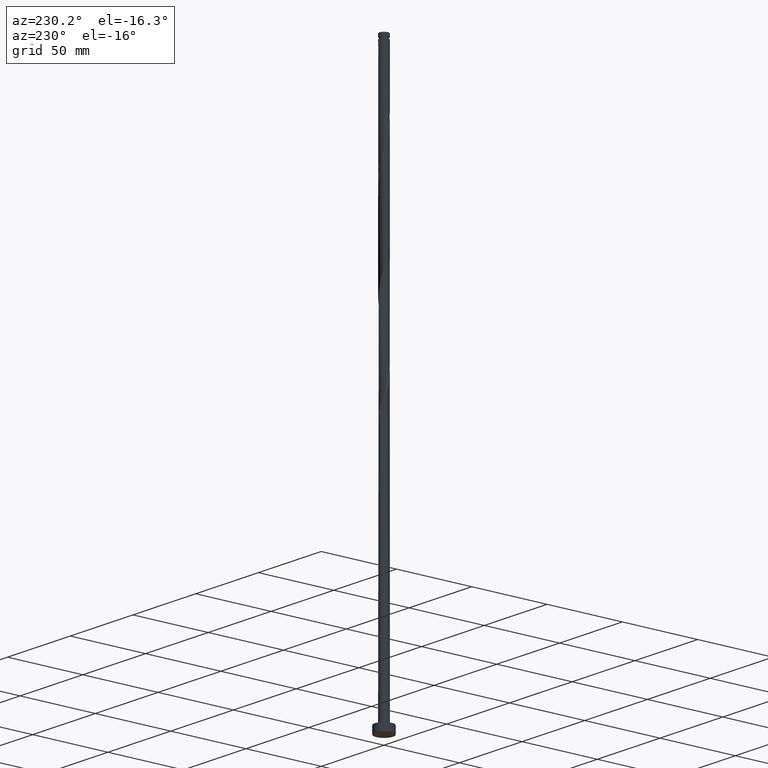
[diagram: clean part render]
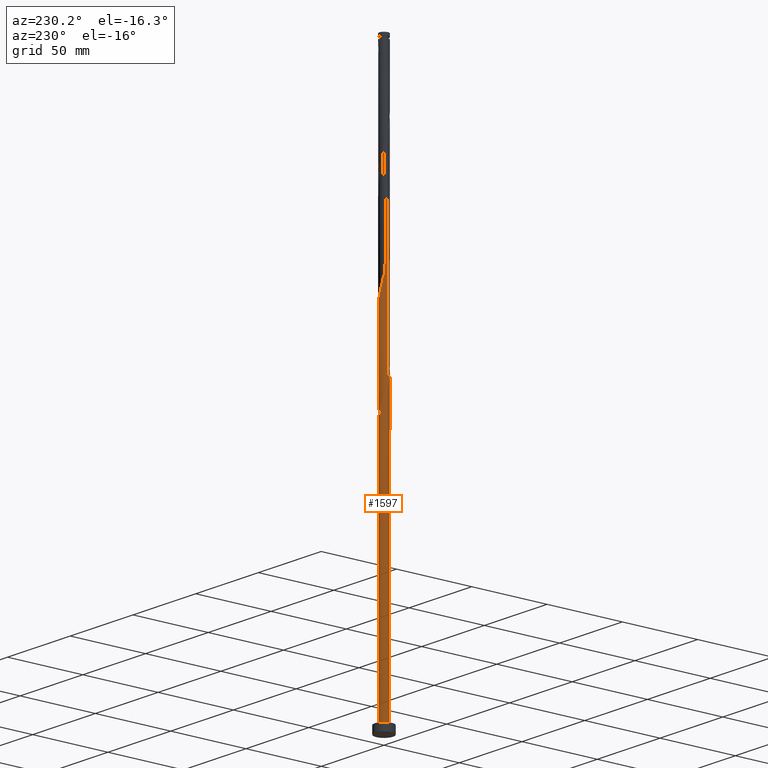
[diagram: same view with one face highlighted and labeled with its STEP entity id]
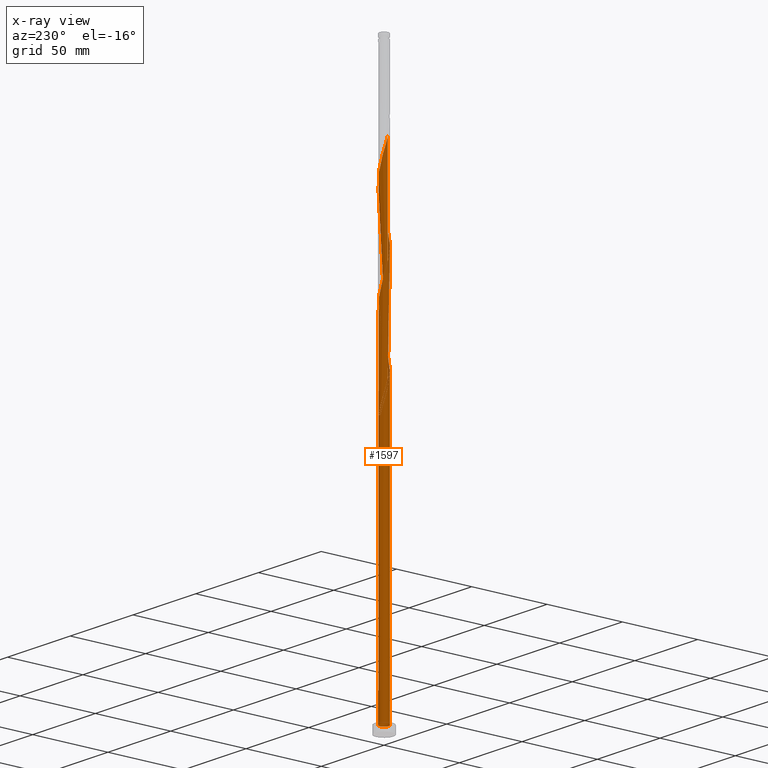
[diagram: x-ray of the same camera — body ghosted, the highlighted face saturated]
A machine part, auxiliary view. The second image highlights one B-rep face of the part: STEP entity #1597.
The next image is the same camera in x-ray: the body ghosted, the highlighted face saturated — about 0% of this face is hidden behind the body in this view.
In plain terms, the highlighted cylindrical surface (bore or boss wall) has radius 3 mm, axis along (-0, -0, -1).
Its self-contained STEP definition (entity closure, byte-faithful):
#2 = CYLINDRICAL_SURFACE ( 'NONE', #1501, 3.000000000000000444 ) ;
#20 = DIRECTION ( 'NONE',  ( -0.000000000000000000, -0.000000000000000000, -1.000000000000000000 ) ) ;
#30 = CARTESIAN_POINT ( 'NONE',  ( 0.000000000000000000, 0.000000000000000000, 372.8000000000000114 ) ) ;
#32 = VERTEX_POINT ( 'NONE', #602 ) ;
#37 = CARTESIAN_POINT ( 'NONE',  ( -0.9582386936374938102, -2.860279830445438431, 197.2469561468925576 ) ) ;
#41 = EDGE_CURVE ( 'NONE', #1564, #1477, #1761, .T. ) ;
#44 = CARTESIAN_POINT ( 'NONE',  ( -0.02731362638453929334, 2.999875658392148647, 171.6914005913370147 ) ) ;
#46 = CARTESIAN_POINT ( 'NONE',  ( -2.980586974261068889, 0.3407363920471055962, 249.4691783691147577 ) ) ;
#49 = ORIENTED_EDGE ( 'NONE', *, *, #924, .F. ) ;
#53 = CARTESIAN_POINT ( 'NONE',  ( -0.9059989139450635998, 2.877253563794376134, 237.2469561468925008 ) ) ;
#62 = CARTESIAN_POINT ( 'NONE',  ( -2.247618455994262465, 1.987010638188424494, 180.5802894802258720 ) ) ;
#64 = CARTESIAN_POINT ( 'NONE',  ( -3.016399812174365813, 0.02746407747455984968, 250.5802894802258720 ) ) ;
#73 = CARTESIAN_POINT ( 'NONE',  ( 2.424175730171096443, -1.795214230025627300, 277.2469561468925576 ) ) ;
#83 = CARTESIAN_POINT ( 'NONE',  ( 2.247618455994268238, 1.987010638188425604, 225.0247339246703291 ) ) ;
#100 = CARTESIAN_POINT ( 'NONE',  ( 0.000000000000000000, 0.000000000000000000, 169.4691783691147293 ) ) ;
#109 = CARTESIAN_POINT ( 'NONE',  ( 0.02731362638454164216, 2.999875658392154421, 300.5802894802259289 ) ) ;
#120 = CARTESIAN_POINT ( 'NONE',  ( -0.9059989139450635998, 2.877253563794376134, 170.5802894802258436 ) ) ;
#128 = CARTESIAN_POINT ( 'NONE',  ( 1.531984494871656777, 2.598546826576328517, 295.0247339246702722 ) ) ;
#140 = CARTESIAN_POINT ( 'NONE',  ( -2.956194341916737578, 0.6002808636434358025, 186.1358450357814149 ) ) ;
#154 = CARTESIAN_POINT ( 'NONE',  ( -3.000000000000006661, 0.1709212123392895299, 183.4048104828753480 ) ) ;
#165 = CARTESIAN_POINT ( 'NONE',  ( 1.741185482790978956, -2.443004935426446700, 207.2469561468925292 ) ) ;
#174 = DIRECTION ( 'NONE',  ( 1.000000000000000000, 0.000000000000000000, 0.000000000000000000 ) ) ;
#184 = CARTESIAN_POINT ( 'NONE',  ( -2.986297077045553916, -0.2864083930844377734, 185.0247339246703575 ) ) ;
#192 = CARTESIAN_POINT ( 'NONE',  ( -2.584311715169902879, 1.523592123514565300, 245.0247339246702722 ) ) ;
#200 = CARTESIAN_POINT ( 'NONE',  ( 3.016399812174366257, -0.02746407747456081072, 217.2469561468925292 ) ) ;
#211 = CARTESIAN_POINT ( 'NONE',  ( -0.5969924622639735112, 2.940000000000004388, 236.1358450357813865 ) ) ;
#220 = CARTESIAN_POINT ( 'NONE',  ( -0.3426132633519652360, -2.997004880578674424, 266.1358450357814149 ) ) ;
#229 = CARTESIAN_POINT ( 'NONE',  ( -2.944774136347772853, 0.6540087066196521581, 248.3580672580036435 ) ) ;
#239 = CARTESIAN_POINT ( 'NONE',  ( -1.997955648279249763, 2.259998966802002851, 308.3580672580036435 ) ) ;
#246 = AXIS2_PLACEMENT_3D ( 'NONE', #1464, #1613, #1058 ) ;
#247 = VERTEX_POINT ( 'NONE', #1799 ) ;
#250 = CARTESIAN_POINT ( 'NONE',  ( -0.2879860105828824235, 3.002746436205633529, 301.6914005913370147 ) ) ;
#269 = CARTESIAN_POINT ( 'NONE',  ( -2.844610918258241306, 0.9529893618115781173, 180.5802894802259004 ) ) ;
#277 = CARTESIAN_POINT ( 'NONE',  ( -1.997955648279249763, 2.259998966802002851, 175.0247339246703007 ) ) ;
#287 = CARTESIAN_POINT ( 'NONE',  ( -3.000000000000000444, 0.1435319978602509761, 187.7527397537388367 ) ) ;
#296 = LINE ( 'NONE', #1194, #673 ) ;
#305 = CARTESIAN_POINT ( 'NONE',  ( -1.195207115623886818, 2.751632233922632675, 171.6914005913370147 ) ) ;
#307 = CARTESIAN_POINT ( 'NONE',  ( 1.195207115623885930, -2.751632233922633120, 205.0247339246702722 ) ) ;
#315 = CARTESIAN_POINT ( 'NONE',  ( -3.000000000000005329, -2.496385375251029314E-15, 184.0104017922599553 ) ) ;
#323 = CARTESIAN_POINT ( 'NONE',  ( -1.531984494871652336, 2.598546826576327184, 177.2469561468925292 ) ) ;
#325 = CARTESIAN_POINT ( 'NONE',  ( -2.956194341916742463, -0.6002808636434362466, 186.1358450357813865 ) ) ;
#335 = CARTESIAN_POINT ( 'NONE',  ( 2.611625341554443924, 1.476283534877587567, 222.8025117024481006 ) ) ;
#341 = CARTESIAN_POINT ( 'NONE',  ( 0.3426132633519657911, 2.997004880578674868, 232.8025117024481006 ) ) ;
#352 = CARTESIAN_POINT ( 'NONE',  ( -2.766788993523062512, -1.201790650553046236, 255.0247339246702438 ) ) ;
#363 = CARTESIAN_POINT ( 'NONE',  ( -1.531984494871655444, -2.598546826576329405, 261.6914005913370147 ) ) ;
#374 = CARTESIAN_POINT ( 'NONE',  ( -2.744447700168710202, 1.251970017003503965, 246.1358450357813865 ) ) ;
#385 = CARTESIAN_POINT ( 'NONE',  ( -3.000000000000000444, 3.916484840214219130E-15, 188.2612882793029314 ) ) ;
#394 = CARTESIAN_POINT ( 'NONE',  ( 3.016399812174366257, -0.02746407747456081072, 283.9136228135591296 ) ) ;
#404 = CARTESIAN_POINT ( 'NONE',  ( 1.245111594254574738, 2.729413328510884362, 296.1358450357813581 ) ) ;
#415 = CARTESIAN_POINT ( 'NONE',  ( -1.484415317302710147, 2.626010904050889216, 306.1358450357813012 ) ) ;
#424 = CARTESIAN_POINT ( 'NONE',  ( 2.956194341916742463, 0.6002808636434358025, 286.1358450357814149 ) ) ;
#447 = CARTESIAN_POINT ( 'NONE',  ( -2.456461689585825781, -1.750776419202128675, 190.5802894802259004 ) ) ;
#449 = ORIENTED_EDGE ( 'NONE', *, *, #986, .F. ) ;
#455 = CARTESIAN_POINT ( 'NONE',  ( 0.5969924622639741774, -2.940000000000004388, 202.8025117024481290 ) ) ;
#464 = CARTESIAN_POINT ( 'NONE',  ( -1.245111594254574738, -2.729413328510884362, 196.1358450357814434 ) ) ;
#475 =( BOUNDED_CURVE ( )  B_SPLINE_CURVE ( 2, ( #1068, #1206, #184, #325, #913, #1748, #1499, #447, #776, #599, #1767, #1214, #464, #37, #875, #480, #1638, #1186, #455, #1042, #307, #1483, #165, #760, #1343, #922, #1084, #520, #533, #1117, #1666, #200, #1369, #490, #1076, #1646, #335, #656, #83, #930, #1515, #510, #822, #794, #1378, #341, #1222, #665, #211, #53, #1243, #1507, #939, #953, #1795, #1681, #192, #374, #1095, #229, #46, #64, #1833, #1408, #1656, #352, #499, #1812, #676, #1525, #803, #363, #1263, #1533, #646, #220, #1388, #1822, #811, #1232, #784, #635, #1803, #1107, #1398, #73, #1252, #962, #1542, #979, #831, #394, #1145, #424, #1551, #1438, #1419, #855, #1558, #1718, #1310, #128, #404, #990, #1293, #724, #109, #250, #705, #1709, #1302, #415, #542, #239, #1865, #1124, #1882, #579, #563, #971, #1585, #552, #840 ),
 .UNSPECIFIED., .F., .T. ) 
 B_SPLINE_CURVE_WITH_KNOTS ( ( 3, 2, 2, 2, 2, 2, 2, 2, 2, 2, 2, 2, 2, 2, 2, 2, 2, 2, 2, 2, 2, 2, 2, 2, 2, 2, 2, 2, 2, 2, 2, 2, 2, 2, 2, 2, 2, 2, 2, 2, 2, 2, 2, 2, 2, 2, 2, 2, 2, 2, 2, 2, 2, 2, 2, 2, 2, 2, 2, 2, 2, 3 ),
 ( 0.05452860127731171819, 0.05833333333333334814, 0.06666666666666665186, 0.07499999999999995559, 0.08333333333333337034, 0.09166666666666667407, 0.09999999999999997780, 0.1083333333333332815, 0.1166666666666666963, 0.1250000000000000000, 0.1333333333333333037, 0.1416666666666667185, 0.1500000000000000222, 0.1583333333333333259, 0.1666666666666666297, 0.1750000000000000444, 0.1833333333333333481, 0.1916666666666666519, 0.1999999999999999556, 0.2083333333333333703, 0.2166666666666666741, 0.2249999999999999778, 0.2333333333333332815, 0.2416666666666666963, 0.2500000000000000000, 0.2583333333333333037, 0.2666666666666667185, 0.2750000000000000222, 0.2833333333333333259, 0.2916666666666666297, 0.3000000000000000444, 0.3083333333333333481, 0.3166666666666666519, 0.3249999999999999556, 0.3333333333333333703, 0.3416666666666666741, 0.3499999999999999778, 0.3583333333333332815, 0.3666666666666666963, 0.3750000000000000000, 0.3833333333333333037, 0.3916666666666667185, 0.4000000000000000222, 0.4083333333333333259, 0.4166666666666666297, 0.4250000000000000444, 0.4333333333333333481, 0.4416666666666666519, 0.4499999999999999556, 0.4583333333333333703, 0.4666666666666666741, 0.4749999999999999778, 0.4833333333333332815, 0.4916666666666666963, 0.5000000000000000000, 0.5083333333333333037, 0.5166666666666666075, 0.5250000000000000222, 0.5333333333333333259, 0.5416666666666667407, 0.5500000000000000444, 0.5545286012773118500 ),
 .UNSPECIFIED. ) 
 CURVE ( )  GEOMETRIC_REPRESENTATION_ITEM ( )  RATIONAL_B_SPLINE_CURVE ( ( 0.9066196499552490184, 0.9068171577856618537, 0.9090909090909605750, 0.9041108139712088487, 0.9090909090909605750, 0.9041108139712088487, 0.9090909090909605750, 0.9041108139712088487, 0.9090909090909605750, 0.9041108139712088487, 0.9090909090909605750, 0.9041108139712088487, 0.9090909090909605750, 0.9041108139712088487, 0.9090909090909605750, 0.9041108139712088487, 0.9090909090909605750, 0.9041108139712088487, 0.9090909090909605750, 0.9041108139712088487, 0.9090909090909605750, 0.9041108139712088487, 0.9090909090909605750, 0.9041108139712088487, 0.9090909090909605750, 0.9041108139712088487, 0.9090909090909605750, 0.9041108139712088487, 0.9090909090909605750, 0.9041108139712088487, 0.9090909090909605750, 0.9041108139712088487, 0.9090909090909605750, 0.9041108139712088487, 0.9090909090909605750, 0.9041108139712088487, 0.9090909090909605750, 0.9041108139712088487, 0.9090909090909605750, 0.9041108139712088487, 0.9090909090909605750, 0.9041108139712088487, 0.9090909090909605750, 0.9041108139712088487, 0.9090909090909605750, 0.9041108139712088487, 0.9090909090909605750, 0.9041108139712088487, 0.9090909090909605750, 0.9041108139712088487, 0.9090909090909605750, 0.9041108139712088487, 0.9090909090909605750, 0.9041108139712088487, 0.9090909090909605750, 0.9041108139712088487, 0.9090909090909605750, 0.9041108139712088487, 0.9090909090909605750, 0.9041108139712088487, 0.9090909090909605750, 0.9041108139712088487, 0.9090909090909605750, 0.9041108139712088487, 0.9090909090909605750, 0.9041108139712088487, 0.9090909090909605750, 0.9041108139712088487, 0.9090909090909605750, 0.9041108139712088487, 0.9090909090909605750, 0.9041108139712088487, 0.9090909090909605750, 0.9041108139712088487, 0.9090909090909605750, 0.9041108139712088487, 0.9090909090909605750, 0.9041108139712088487, 0.9090909090909605750, 0.9041108139712088487, 0.9090909090909605750, 0.9041108139712088487, 0.9090909090909605750, 0.9041108139712088487, 0.9090909090909605750, 0.9041108139712088487, 0.9090909090909605750, 0.9041108139712088487, 0.9090909090909605750, 0.9041108139712088487, 0.9090909090909605750, 0.9041108139712088487, 0.9090909090909605750, 0.9041108139712088487, 0.9090909090909605750, 0.9041108139712088487, 0.9090909090909605750, 0.9041108139712088487, 0.9090909090909605750, 0.9041108139712088487, 0.9090909090909605750, 0.9041108139712088487, 0.9090909090909605750, 0.9041108139712088487, 0.9090909090909605750, 0.9041108139712088487, 0.9090909090909605750, 0.9041108139712088487, 0.9090909090909605750, 0.9041108139712088487, 0.9090909090909605750, 0.9041108139712088487, 0.9090909090909605750, 0.9041108139712088487, 0.9090909090909605750, 0.9041108139712088487, 0.9090909090909605750, 0.9041108139712088487, 0.9090909090909605750, 0.9041108139712088487, 0.9090909090909605750, 0.9063845652765074590, 0.9066196499552489074 ) ) 
 REPRESENTATION_ITEM ( '' )  );
#480 = CARTESIAN_POINT ( 'NONE',  ( -0.3426132633519652360, -2.997004880578674424, 199.4691783691147293 ) ) ;
#489 = CIRCLE ( 'NONE', #1227, 3.000000000000000444 ) ;
#490 = CARTESIAN_POINT ( 'NONE',  ( 2.956194341916742463, 0.6002808636434358025, 219.4691783691147293 ) ) ;
#499 = CARTESIAN_POINT ( 'NONE',  ( -2.611625341554443924, -1.476283534877588011, 256.1358450357814149 ) ) ;
#510 = CARTESIAN_POINT ( 'NONE',  ( 1.531984494871656777, 2.598546826576328517, 228.3580672580036719 ) ) ;
#520 = CARTESIAN_POINT ( 'NONE',  ( 2.744447700168710202, -1.251970017003504410, 212.8025117024480721 ) ) ;
#533 = CARTESIAN_POINT ( 'NONE',  ( 2.844610918258240861, -0.9529893618115791165, 213.9136228135591864 ) ) ;
#542 = CARTESIAN_POINT ( 'NONE',  ( -1.741185482790979622, 2.443004935426445812, 307.2469561468925576 ) ) ;
#550 = ORIENTED_EDGE ( 'NONE', *, *, #41, .T. ) ;
#552 = CARTESIAN_POINT ( 'NONE',  ( -3.000000000000007550, 0.1709212123392846172, 316.7381438162088330 ) ) ;
#560 = CIRCLE ( 'NONE', #1072, 3.000000000000000444 ) ;
#561 = ORIENTED_EDGE ( 'NONE', *, *, #1853, .T. ) ;
#563 = CARTESIAN_POINT ( 'NONE',  ( -2.844610918258241306, 0.9529893618115781173, 313.9136228135590727 ) ) ;
#579 = CARTESIAN_POINT ( 'NONE',  ( -2.744447700168710202, 1.251970017003503965, 312.8025117024481006 ) ) ;
#590 = CARTESIAN_POINT ( 'NONE',  ( -2.611625341554439039, 1.476283534877586234, 182.8025117024480721 ) ) ;
#599 = CARTESIAN_POINT ( 'NONE',  ( -2.038775222402708920, -2.223244857174723865, 192.8025117024481006 ) ) ;
#602 = CARTESIAN_POINT ( 'NONE',  ( 0.5969924622639745104, 2.939999999999999503, 169.4691783691147293 ) ) ;
#613 =( BOUNDED_CURVE ( )  B_SPLINE_CURVE ( 2, ( #1610, #120, #305, #1588, #894, #277, #1165, #1481, #1176, #746, #269, #1746, #1321, #154, #758 ),
 .UNSPECIFIED., .F., .T. ) 
 B_SPLINE_CURVE_WITH_KNOTS ( ( 3, 2, 2, 2, 2, 2, 2, 3 ),
 ( 0.000000000000000000, 0.008333333333333303727, 0.01666666666666671848, 0.02500000000000002220, 0.03333333333333332593, 0.04166666666666662966, 0.05000000000000004441, 0.05452860127731171819 ),
 .UNSPECIFIED. ) 
 CURVE ( )  GEOMETRIC_REPRESENTATION_ITEM ( )  RATIONAL_B_SPLINE_CURVE ( ( 0.9090909090909605750, 0.9041108139712088487, 0.9090909090909605750, 0.9041108139712088487, 0.9090909090909605750, 0.9041108139712088487, 0.9090909090909605750, 0.9041108139712088487, 0.9090909090909605750, 0.9041108139712088487, 0.9090909090909605750, 0.9041108139712088487, 0.9090909090909605750, 0.9063845652765076810, 0.9066196499552490184 ) ) 
 REPRESENTATION_ITEM ( '' )  );
#635 = CARTESIAN_POINT ( 'NONE',  ( 1.484415317302710147, -2.626010904050889216, 272.8025117024479869 ) ) ;
#639 = ORIENTED_EDGE ( 'NONE', *, *, #1618, .T. ) ;
#646 = CARTESIAN_POINT ( 'NONE',  ( -0.6504259784947296064, -2.928642355512056650, 265.0247339246702722 ) ) ;
#654 = CARTESIAN_POINT ( 'NONE',  ( -0.6504259784947271639, 2.928642355512051765, 173.9136228135591580 ) ) ;
#656 = CARTESIAN_POINT ( 'NONE',  ( 2.456461689585825781, 1.750776419202128009, 223.9136228135592148 ) ) ;
#665 = CARTESIAN_POINT ( 'NONE',  ( -0.2879860105828824235, 3.002746436205633529, 235.0247339246702722 ) ) ;
#673 = VECTOR ( 'NONE', #1312, 1000.000000000000000 ) ;
#676 = CARTESIAN_POINT ( 'NONE',  ( -2.247618455994266906, -1.987010638188426492, 258.3580672580037003 ) ) ;
#695 = DIRECTION ( 'NONE',  ( 0.000000000000000000, -0.000000000000000000, -1.000000000000000000 ) ) ;
#705 = CARTESIAN_POINT ( 'NONE',  ( -0.5969924622639735112, 2.940000000000004388, 302.8025117024480437 ) ) ;
#711 = CARTESIAN_POINT ( 'NONE',  ( -0.5969924622639735112, 2.940000000000004832, 169.4691783691147293 ) ) ;
#724 = CARTESIAN_POINT ( 'NONE',  ( 0.3426132633519657911, 2.997004880578674868, 299.4691783691146725 ) ) ;
#735 = CARTESIAN_POINT ( 'NONE',  ( -2.766788993523057627, 1.201790650553046680, 183.9136228135592148 ) ) ;
#746 = CARTESIAN_POINT ( 'NONE',  ( -2.744447700168710202, 1.251970017003503965, 179.4691783691147862 ) ) ;
#757 = EDGE_CURVE ( 'NONE', #788, #1760, #296, .T. ) ;
#758 = CARTESIAN_POINT ( 'NONE',  ( -3.000000000000005329, -2.496385375251029314E-15, 184.0104017922599553 ) ) ;
#760 = CARTESIAN_POINT ( 'NONE',  ( 1.997955648279249319, -2.259998966802002851, 208.3580672580036435 ) ) ;
#776 = CARTESIAN_POINT ( 'NONE',  ( -2.247618455994266906, -1.987010638188426492, 191.6914005913369579 ) ) ;
#784 = CARTESIAN_POINT ( 'NONE',  ( 1.195207115623885930, -2.751632233922633120, 271.6914005913369579 ) ) ;
#788 = VERTEX_POINT ( 'NONE', #1341 ) ;
#794 = CARTESIAN_POINT ( 'NONE',  ( 0.9582386936374943653, 2.860279830445438431, 230.5802894802258436 ) ) ;
#803 = CARTESIAN_POINT ( 'NONE',  ( -1.785379858637182737, -2.410895841875527079, 260.5802894802258720 ) ) ;
#811 = CARTESIAN_POINT ( 'NONE',  ( 0.5969924622639741774, -2.940000000000004388, 269.4691783691147293 ) ) ;
#822 = CARTESIAN_POINT ( 'NONE',  ( 1.245111594254574738, 2.729413328510884362, 229.4691783691147009 ) ) ;
#831 = CARTESIAN_POINT ( 'NONE',  ( 2.980586974261068889, -0.3407363920471059848, 282.8025117024482142 ) ) ;
#840 = CARTESIAN_POINT ( 'NONE',  ( -3.000000000000006217, -2.541230621513023448E-16, 317.3437351255933550 ) ) ;
#847 = ORIENTED_EDGE ( 'NONE', *, *, #41, .F. ) ;
#855 = CARTESIAN_POINT ( 'NONE',  ( 2.456461689585825781, 1.750776419202128009, 290.5802894802259289 ) ) ;
#873 = CARTESIAN_POINT ( 'NONE',  ( -2.986297077045549919, 0.2864083930844388282, 187.2469561468925008 ) ) ;
#875 = CARTESIAN_POINT ( 'NONE',  ( -0.6504259784947296064, -2.928642355512056650, 198.3580672580036719 ) ) ;
#894 = CARTESIAN_POINT ( 'NONE',  ( -1.741185482790979622, 2.443004935426445812, 173.9136228135591580 ) ) ;
#905 = CARTESIAN_POINT ( 'NONE',  ( 0.000000000000000000, 0.000000000000000000, 5.000000000000000000 ) ) ;
#913 = CARTESIAN_POINT ( 'NONE',  ( -2.861491667719902932, -0.9010357570982416853, 187.2469561468925576 ) ) ;
#922 = CARTESIAN_POINT ( 'NONE',  ( 2.424175730171096443, -1.795214230025627300, 210.5802894802258436 ) ) ;
#924 = EDGE_CURVE ( 'NONE', #1426, #1564, #613, .T. ) ;
#926 = ORIENTED_EDGE ( 'NONE', *, *, #757, .F. ) ;
#929 = CARTESIAN_POINT ( 'NONE',  ( -2.038775222402705367, 2.223244857174722089, 179.4691783691148430 ) ) ;
#930 = CARTESIAN_POINT ( 'NONE',  ( 2.038775222402709364, 2.223244857174723865, 226.1358450357814149 ) ) ;
#939 = CARTESIAN_POINT ( 'NONE',  ( -1.741185482790979622, 2.443004935426445812, 240.5802894802258720 ) ) ;
#953 = CARTESIAN_POINT ( 'NONE',  ( -1.997955648279249763, 2.259998966802002851, 241.6914005913370147 ) ) ;
#962 = CARTESIAN_POINT ( 'NONE',  ( 2.744447700168710202, -1.251970017003504410, 279.4691783691147293 ) ) ;
#971 = CARTESIAN_POINT ( 'NONE',  ( -2.944774136347772853, 0.6540087066196521581, 315.0247339246702722 ) ) ;
#978 = CIRCLE ( 'NONE', #246, 3.000000000000000444 ) ;
#979 = CARTESIAN_POINT ( 'NONE',  ( 2.944774136347771520, -0.6540087066196541565, 281.6914005913369579 ) ) ;
#986 = EDGE_CURVE ( 'NONE', #1760, #32, #1841, .T. ) ;
#990 = CARTESIAN_POINT ( 'NONE',  ( 0.9582386936374943653, 2.860279830445438431, 297.2469561468925008 ) ) ;
#1021 = CARTESIAN_POINT ( 'NONE',  ( -3.000000000000000444, 3.916484840214219130E-15, 188.2612882793029598 ) ) ;
#1031 = CARTESIAN_POINT ( 'NONE',  ( -2.456461689585820451, 1.750776419202127565, 181.6914005913370147 ) ) ;
#1037 = CARTESIAN_POINT ( 'NONE',  ( -3.000000000000000444, 0.000000000000000000, 372.8000000000000114 ) ) ;
#1042 = CARTESIAN_POINT ( 'NONE',  ( 0.9059989139450624895, -2.877253563794377911, 203.9136228135591864 ) ) ;
#1058 = DIRECTION ( 'NONE',  ( 1.000000000000000000, 0.000000000000000000, 0.000000000000000000 ) ) ;
#1066 = CARTESIAN_POINT ( 'NONE',  ( -1.785379858637178296, 2.410895841875523526, 178.3580672580035866 ) ) ;
#1068 = CARTESIAN_POINT ( 'NONE',  ( -3.000000000000005329, -2.496385375251029314E-15, 184.0104017922599553 ) ) ;
#1072 = AXIS2_PLACEMENT_3D ( 'NONE', #905, #1475, #174 ) ;
#1075 = CARTESIAN_POINT ( 'NONE',  ( -1.245111594254571408, 2.729413328510879921, 176.1358450357815002 ) ) ;
#1076 = CARTESIAN_POINT ( 'NONE',  ( 2.861491667719903376, 0.9010357570982405750, 220.5802894802258720 ) ) ;
#1084 = CARTESIAN_POINT ( 'NONE',  ( 2.584311715169902879, -1.523592123514565966, 211.6914005913370431 ) ) ;
#1095 = CARTESIAN_POINT ( 'NONE',  ( -2.844610918258241306, 0.9529893618115781173, 247.2469561468925576 ) ) ;
#1107 = CARTESIAN_POINT ( 'NONE',  ( 1.997955648279249319, -2.259998966802002851, 275.0247339246703859 ) ) ;
#1117 = CARTESIAN_POINT ( 'NONE',  ( 2.944774136347771520, -0.6540087066196541565, 215.0247339246703291 ) ) ;
#1124 = CARTESIAN_POINT ( 'NONE',  ( -2.424175730171096887, 1.795214230025627078, 310.5802894802259289 ) ) ;
#1145 = CARTESIAN_POINT ( 'NONE',  ( 2.986297077045553916, 0.2864083930844361081, 285.0247339246703859 ) ) ;
#1165 = CARTESIAN_POINT ( 'NONE',  ( -2.211065689225172992, 2.027606598413814520, 176.1358450357815002 ) ) ;
#1176 = CARTESIAN_POINT ( 'NONE',  ( -2.584311715169902879, 1.523592123514565300, 178.3580672580035866 ) ) ;
#1186 = CARTESIAN_POINT ( 'NONE',  ( 0.2879860105828841443, -3.002746436205632641, 201.6914005913369294 ) ) ;
#1194 = CARTESIAN_POINT ( 'NONE',  ( -3.000000000000000444, 0.000000000000000000, 372.8000000000000114 ) ) ;
#1206 = CARTESIAN_POINT ( 'NONE',  ( -3.000000000000004441, -0.1435319978602572766, 184.5189503178239931 ) ) ;
#1209 = DIRECTION ( 'NONE',  ( -0.000000000000000000, -0.000000000000000000, -1.000000000000000000 ) ) ;
#1214 = CARTESIAN_POINT ( 'NONE',  ( -1.531984494871655444, -2.598546826576329405, 195.0247339246702438 ) ) ;
#1222 = CARTESIAN_POINT ( 'NONE',  ( 0.02731362638454164216, 2.999875658392154421, 233.9136228135592432 ) ) ;
#1227 = AXIS2_PLACEMENT_3D ( 'NONE', #100, #695, #1282 ) ;
#1231 = CARTESIAN_POINT ( 'NONE',  ( -0.3426132633519639037, 2.997004880578669095, 172.8025117024481290 ) ) ;
#1232 = CARTESIAN_POINT ( 'NONE',  ( 0.9059989139450624895, -2.877253563794377911, 270.5802894802258152 ) ) ;
#1241 = CARTESIAN_POINT ( 'NONE',  ( 0.5969924622639745104, 2.939999999999999503, 169.4691783691147293 ) ) ;
#1243 = CARTESIAN_POINT ( 'NONE',  ( -1.195207115623886818, 2.751632233922632675, 238.3580672580036151 ) ) ;
#1252 = CARTESIAN_POINT ( 'NONE',  ( 2.584311715169902879, -1.523592123514565966, 278.3580672580035866 ) ) ;
#1263 = CARTESIAN_POINT ( 'NONE',  ( -1.245111594254574738, -2.729413328510884362, 262.8025117024480437 ) ) ;
#1282 = DIRECTION ( 'NONE',  ( -1.000000000000000000, 0.000000000000000000, 0.000000000000000000 ) ) ;
#1293 = CARTESIAN_POINT ( 'NONE',  ( 0.6504259784947314937, 2.928642355512055762, 298.3580672580037572 ) ) ;
#1302 = CARTESIAN_POINT ( 'NONE',  ( -1.195207115623886818, 2.751632233922632675, 305.0247339246703291 ) ) ;
#1310 = CARTESIAN_POINT ( 'NONE',  ( 1.785379858637182737, 2.410895841875526635, 293.9136228135590727 ) ) ;
#1312 = DIRECTION ( 'NONE',  ( -0.000000000000000000, -0.000000000000000000, -1.000000000000000000 ) ) ;
#1321 = CARTESIAN_POINT ( 'NONE',  ( -2.980586974261068889, 0.3407363920471055962, 182.8025117024480721 ) ) ;
#1341 = CARTESIAN_POINT ( 'NONE',  ( -3.000000000000005773, -2.541230621513023448E-16, 317.3437351255933550 ) ) ;
#1343 = CARTESIAN_POINT ( 'NONE',  ( 2.211065689225172992, -2.027606598413814520, 209.4691783691147577 ) ) ;
#1351 = CARTESIAN_POINT ( 'NONE',  ( -3.000000000000000444, 0.000000000000000000, 5.000000000000000000 ) ) ;
#1369 = CARTESIAN_POINT ( 'NONE',  ( 2.986297077045553916, 0.2864083930844361081, 218.3580672580036435 ) ) ;
#1378 = CARTESIAN_POINT ( 'NONE',  ( 0.6504259784947314937, 2.928642355512055762, 231.6914005913369579 ) ) ;
#1388 = CARTESIAN_POINT ( 'NONE',  ( -0.02731362638454121541, -2.999875658392153532, 267.2469561468926145 ) ) ;
#1398 = CARTESIAN_POINT ( 'NONE',  ( 2.211065689225172992, -2.027606598413814520, 276.1358450357814718 ) ) ;
#1408 = CARTESIAN_POINT ( 'NONE',  ( -2.956194341916742463, -0.6002808636434362466, 252.8025117024480437 ) ) ;
#1419 = CARTESIAN_POINT ( 'NONE',  ( 2.611625341554443924, 1.476283534877587567, 289.4691783691147293 ) ) ;
#1426 = VERTEX_POINT ( 'NONE', #711 ) ;
#1438 = CARTESIAN_POINT ( 'NONE',  ( 2.766788993523062956, 1.201790650553045126, 288.3580672580035866 ) ) ;
#1464 = CARTESIAN_POINT ( 'NONE',  ( 0.000000000000000000, 0.000000000000000000, 5.000000000000000000 ) ) ;
#1475 = DIRECTION ( 'NONE',  ( 0.000000000000000000, 0.000000000000000000, 1.000000000000000000 ) ) ;
#1477 = VERTEX_POINT ( 'NONE', #1351 ) ;
#1481 = CARTESIAN_POINT ( 'NONE',  ( -2.424175730171096887, 1.795214230025627078, 177.2469561468925008 ) ) ;
#1483 = CARTESIAN_POINT ( 'NONE',  ( 1.484415317302710147, -2.626010904050889216, 206.1358450357814434 ) ) ;
#1499 = CARTESIAN_POINT ( 'NONE',  ( -2.611625341554443924, -1.476283534877588011, 189.4691783691147862 ) ) ;
#1501 = AXIS2_PLACEMENT_3D ( 'NONE', #30, #20, #1776 ) ;
#1507 = CARTESIAN_POINT ( 'NONE',  ( -1.484415317302710147, 2.626010904050889216, 239.4691783691147293 ) ) ;
#1515 = CARTESIAN_POINT ( 'NONE',  ( 1.785379858637182737, 2.410895841875526635, 227.2469561468925576 ) ) ;
#1525 = CARTESIAN_POINT ( 'NONE',  ( -2.038775222402708920, -2.223244857174723865, 259.4691783691148430 ) ) ;
#1533 = CARTESIAN_POINT ( 'NONE',  ( -0.9582386936374938102, -2.860279830445438431, 263.9136228135592432 ) ) ;
#1537 = EDGE_LOOP ( 'NONE', ( #926, #1769, #550, #1839, #639, #847, #49, #561, #449 ) ) ;
#1542 = CARTESIAN_POINT ( 'NONE',  ( 2.844610918258240861, -0.9529893618115791165, 280.5802894802258152 ) ) ;
#1551 = CARTESIAN_POINT ( 'NONE',  ( 2.861491667719903376, 0.9010357570982405750, 287.2469561468925576 ) ) ;
#1558 = CARTESIAN_POINT ( 'NONE',  ( 2.247618455994268238, 1.987010638188425604, 291.6914005913370715 ) ) ;
#1564 = VERTEX_POINT ( 'NONE', #315 ) ;
#1585 = CARTESIAN_POINT ( 'NONE',  ( -2.980586974261068889, 0.3407363920471055962, 316.1358450357815286 ) ) ;
#1588 = CARTESIAN_POINT ( 'NONE',  ( -1.484415317302710147, 2.626010904050889216, 172.8025117024481290 ) ) ;
#1597 = ADVANCED_FACE ( 'NONE', ( #1606 ), #2, .T. ) ;
#1606 = FACE_OUTER_BOUND ( 'NONE', #1537, .T. ) ;
#1610 = CARTESIAN_POINT ( 'NONE',  ( -0.5969924622639735112, 2.940000000000004388, 169.4691783691147293 ) ) ;
#1613 = DIRECTION ( 'NONE',  ( 0.000000000000000000, 0.000000000000000000, 1.000000000000000000 ) ) ;
#1618 = EDGE_CURVE ( 'NONE', #247, #1477, #560, .T. ) ;
#1638 = CARTESIAN_POINT ( 'NONE',  ( -0.02731362638454121541, -2.999875658392153532, 200.5802894802258720 ) ) ;
#1645 = CARTESIAN_POINT ( 'NONE',  ( -0.9582386936374909236, 2.860279830445433547, 175.0247339246703007 ) ) ;
#1646 = CARTESIAN_POINT ( 'NONE',  ( 2.766788993523062956, 1.201790650553045126, 221.6914005913369579 ) ) ;
#1648 = EDGE_CURVE ( 'NONE', #1477, #247, #978, .T. ) ;
#1656 = CARTESIAN_POINT ( 'NONE',  ( -2.861491667719902932, -0.9010357570982416853, 253.9136228135592148 ) ) ;
#1666 = CARTESIAN_POINT ( 'NONE',  ( 2.980586974261068889, -0.3407363920471059848, 216.1358450357814434 ) ) ;
#1681 = CARTESIAN_POINT ( 'NONE',  ( -2.424175730171096887, 1.795214230025627078, 243.9136228135591864 ) ) ;
#1703 = EDGE_CURVE ( 'NONE', #1564, #788, #475, .T. ) ;
#1709 = CARTESIAN_POINT ( 'NONE',  ( -0.9059989139450635998, 2.877253563794376134, 303.9136228135591864 ) ) ;
#1718 = CARTESIAN_POINT ( 'NONE',  ( 2.038775222402709364, 2.223244857174723865, 292.8025117024481006 ) ) ;
#1746 = CARTESIAN_POINT ( 'NONE',  ( -2.944774136347772853, 0.6540087066196521581, 181.6914005913369579 ) ) ;
#1748 = CARTESIAN_POINT ( 'NONE',  ( -2.766788993523062512, -1.201790650553046236, 188.3580672580036719 ) ) ;
#1760 = VERTEX_POINT ( 'NONE', #385 ) ;
#1761 = LINE ( 'NONE', #1037, #1777 ) ;
#1767 = CARTESIAN_POINT ( 'NONE',  ( -1.785379858637182737, -2.410895841875527079, 193.9136228135592148 ) ) ;
#1769 = ORIENTED_EDGE ( 'NONE', *, *, #1703, .F. ) ;
#1776 = DIRECTION ( 'NONE',  ( -1.000000000000000000, 0.000000000000000000, 0.000000000000000000 ) ) ;
#1777 = VECTOR ( 'NONE', #1209, 1000.000000000000000 ) ;
#1784 = CARTESIAN_POINT ( 'NONE',  ( 0.2879860105828850325, 3.002746436205628644, 170.5802894802258436 ) ) ;
#1795 = CARTESIAN_POINT ( 'NONE',  ( -2.211065689225172992, 2.027606598413814520, 242.8025117024481290 ) ) ;
#1799 = CARTESIAN_POINT ( 'NONE',  ( 3.000000000000000444, 0.000000000000000000, 5.000000000000000000 ) ) ;
#1803 = CARTESIAN_POINT ( 'NONE',  ( 1.741185482790978956, -2.443004935426446700, 273.9136228135591296 ) ) ;
#1812 = CARTESIAN_POINT ( 'NONE',  ( -2.456461689585825781, -1.750776419202128675, 257.2469561468925008 ) ) ;
#1822 = CARTESIAN_POINT ( 'NONE',  ( 0.2879860105828841443, -3.002746436205632641, 268.3580672580035866 ) ) ;
#1833 = CARTESIAN_POINT ( 'NONE',  ( -2.986297077045553916, -0.2864083930844377734, 251.6914005913369863 ) ) ;
#1839 = ORIENTED_EDGE ( 'NONE', *, *, #1648, .T. ) ;
#1841 =( BOUNDED_CURVE ( )  B_SPLINE_CURVE ( 2, ( #1021, #287, #873, #140, #1895, #735, #590, #1031, #62, #929, #1066, #323, #1075, #1645, #654, #1231, #44, #1784, #1241 ),
 .UNSPECIFIED., .F., .T. ) 
 B_SPLINE_CURVE_WITH_KNOTS ( ( 3, 2, 2, 2, 2, 2, 2, 2, 2, 3 ),
 ( 0.9295286012773115170, 0.9333333333333333481, 0.9416666666666666519, 0.9499999999999999556, 0.9583333333333333703, 0.9666666666666666741, 0.9749999999999999778, 0.9833333333333332815, 0.9916666666666666963, 1.000000000000000000 ),
 .UNSPECIFIED. ) 
 CURVE ( )  GEOMETRIC_REPRESENTATION_ITEM ( )  RATIONAL_B_SPLINE_CURVE ( ( 0.9066196499552421351, 0.9068171577856548593, 0.9090909090909538026, 0.9041108139712019653, 0.9090909090909538026, 0.9041108139712019653, 0.9090909090909538026, 0.9041108139712019653, 0.9090909090909538026, 0.9041108139712019653, 0.9090909090909538026, 0.9041108139712019653, 0.9090909090909538026, 0.9041108139712019653, 0.9090909090909538026, 0.9041108139712019653, 0.9090909090909538026, 0.9041108139712019653, 0.9090909090909538026 ) ) 
 REPRESENTATION_ITEM ( '' )  );
#1853 = EDGE_CURVE ( 'NONE', #1426, #32, #489, .T. ) ;
#1865 = CARTESIAN_POINT ( 'NONE',  ( -2.211065689225172992, 2.027606598413814520, 309.4691783691147862 ) ) ;
#1882 = CARTESIAN_POINT ( 'NONE',  ( -2.584311715169902879, 1.523592123514565300, 311.6914005913370147 ) ) ;
#1895 = CARTESIAN_POINT ( 'NONE',  ( -2.861491667719897602, 0.9010357570982414632, 185.0247339246703291 ) ) ;